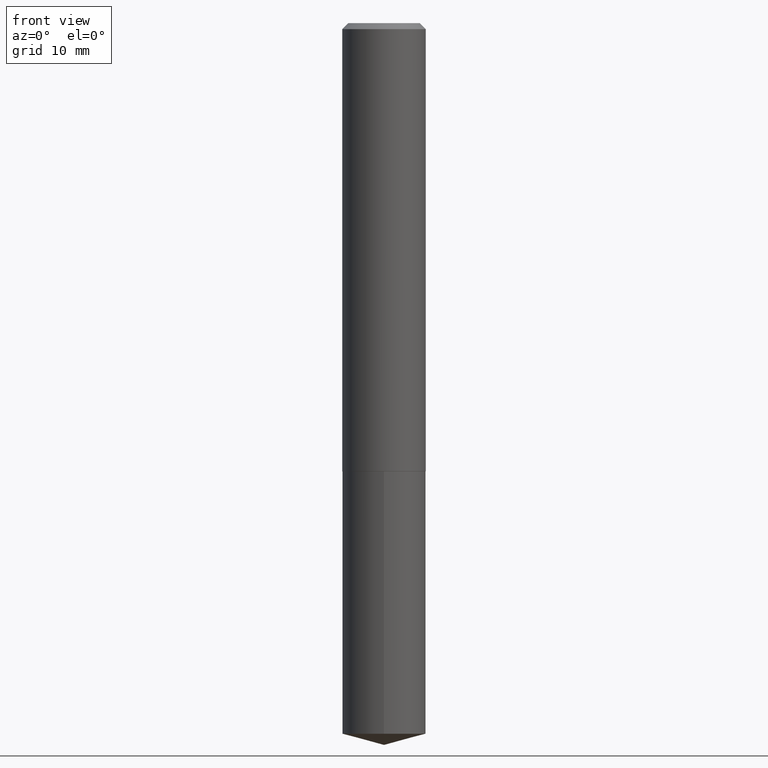
[diagram: clean part render]
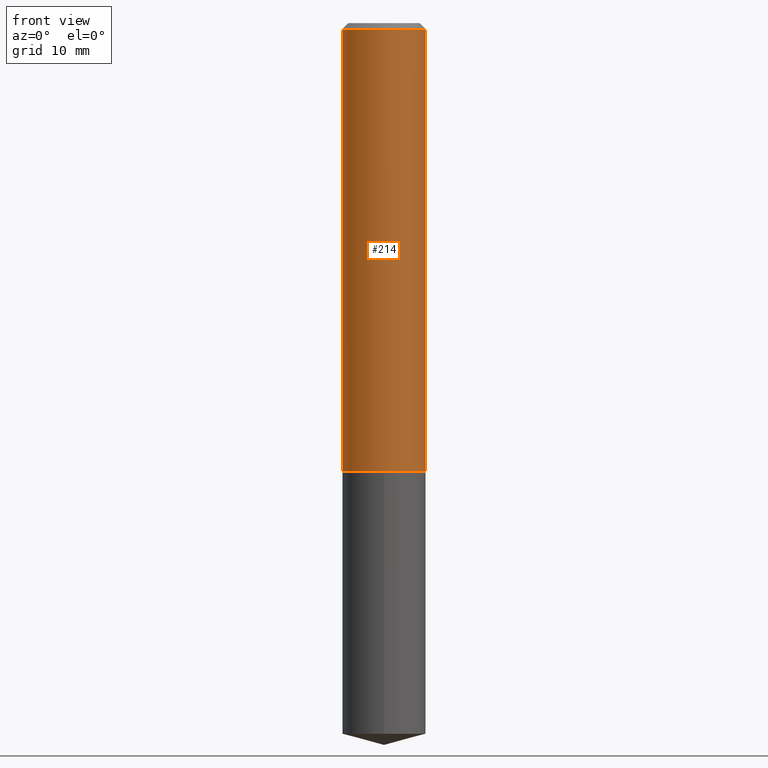
[diagram: same view with one face highlighted and labeled with its STEP entity id]
A machine part, front view. The second image highlights one B-rep face of the part: STEP entity #214.
In plain terms, the highlighted cylindrical surface (partial cylindrical patch) has radius 5.5004 mm, axis along (-0, 0, 1).
Its self-contained STEP definition (entity closure, byte-faithful):
#5 = EDGE_CURVE ( 'NONE', #165, #300, #114, .T. ) ;
#32 = CARTESIAN_POINT ( 'NONE',  ( 0.2165500000000000203, -1.621269359691810318E-15, -0.03125000000000019429 ) ) ;
#48 = LINE ( 'NONE', #137, #169 ) ;
#51 = CARTESIAN_POINT ( 'NONE',  ( 5.679356755484362262E-29, -8.108616261329323209E-15, -2.322400000000000464 ) ) ;
#65 = DIRECTION ( 'NONE',  ( -2.445468806185136877E-29, 3.491481338843145188E-15, 1.000000000000000000 ) ) ;
#84 = DIRECTION ( 'NONE',  ( 1.000000000000000000, -6.982962677686266711E-15, 4.876176775795936353E-29 ) ) ;
#90 = AXIS2_PLACEMENT_3D ( 'NONE', #51, #264, #164 ) ;
#99 = ORIENTED_EDGE ( 'NONE', *, *, #261, .T. ) ;
#110 = ORIENTED_EDGE ( 'NONE', *, *, #5, .F. ) ;
#111 = CARTESIAN_POINT ( 'NONE',  ( 0.2165500000000002701, -9.620776829182285610E-15, -2.322400000000000464 ) ) ;
#114 = LINE ( 'NONE', #205, #185 ) ;
#131 = CARTESIAN_POINT ( 'NONE',  ( 7.642090019328598283E-31, -1.091087918388489651E-16, -0.03125000000000019429 ) ) ;
#136 = AXIS2_PLACEMENT_3D ( 'NONE', #131, #259, #375 ) ;
#137 = CARTESIAN_POINT ( 'NONE',  ( 0.2165500000000001590, -1.512160567852962203E-15, 1.055936080798610736E-29 ) ) ;
#139 = DIRECTION ( 'NONE',  ( -2.445468806185136877E-29, 3.491481338843145188E-15, 1.000000000000000000 ) ) ;
#154 = CARTESIAN_POINT ( 'NONE',  ( -0.2165500000000002701, -6.569935967040822957E-15, -2.322400000000000464 ) ) ;
#164 = DIRECTION ( 'NONE',  ( 1.000000000000000000, -6.982962677686269866E-15, 0.000000000000000000 ) ) ;
#165 = VERTEX_POINT ( 'NONE', #154 ) ;
#169 = VECTOR ( 'NONE', #139, 39.37007874015748143 ) ;
#185 = VECTOR ( 'NONE', #65, 39.37007874015748143 ) ;
#197 = DIRECTION ( 'NONE',  ( -2.445468806185136597E-29, 3.491481338843145583E-15, 1.000000000000000000 ) ) ;
#205 = CARTESIAN_POINT ( 'NONE',  ( -0.2165500000000001590, 1.538680294288498082E-15, -1.065195393794700623E-29 ) ) ;
#214 = ADVANCED_FACE ( 'NONE', ( #352 ), #322, .T. ) ;
#236 = ORIENTED_EDGE ( 'NONE', *, *, #350, .F. ) ;
#259 = DIRECTION ( 'NONE',  ( -2.445468806185136597E-29, 3.491481338843145583E-15, 1.000000000000000000 ) ) ;
#261 = EDGE_CURVE ( 'NONE', #314, #377, #48, .T. ) ;
#264 = DIRECTION ( 'NONE',  ( -2.445468806185136597E-29, 3.491481338843145583E-15, 1.000000000000000000 ) ) ;
#266 = CARTESIAN_POINT ( 'NONE',  ( 0.000000000000000000, 0.000000000000000000, 0.000000000000000000 ) ) ;
#275 = ORIENTED_EDGE ( 'NONE', *, *, #310, .T. ) ;
#290 = AXIS2_PLACEMENT_3D ( 'NONE', #266, #197, #84 ) ;
#300 = VERTEX_POINT ( 'NONE', #347 ) ;
#310 = EDGE_CURVE ( 'NONE', #165, #314, #371, .T. ) ;
#314 = VERTEX_POINT ( 'NONE', #111 ) ;
#322 = CYLINDRICAL_SURFACE ( 'NONE', #290, 0.2165500000000001590 ) ;
#331 = EDGE_LOOP ( 'NONE', ( #110, #275, #99, #236 ) ) ;
#347 = CARTESIAN_POINT ( 'NONE',  ( -0.2165500000000000203, -2.570182232295586298E-15, -0.03125000000000019429 ) ) ;
#350 = EDGE_CURVE ( 'NONE', #300, #377, #380, .T. ) ;
#352 = FACE_OUTER_BOUND ( 'NONE', #331, .T. ) ;
#371 = CIRCLE ( 'NONE', #90, 0.2165500000000002701 ) ;
#375 = DIRECTION ( 'NONE',  ( 1.000000000000000000, -6.982962677686266711E-15, 0.000000000000000000 ) ) ;
#377 = VERTEX_POINT ( 'NONE', #32 ) ;
#380 = CIRCLE ( 'NONE', #136, 0.2165500000000000203 ) ;